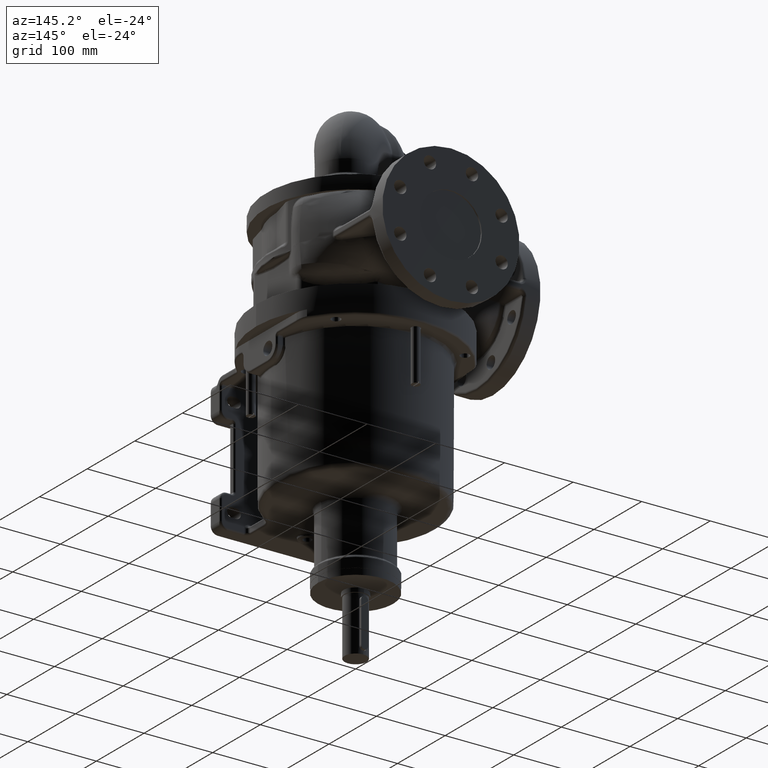
[diagram: clean part render]
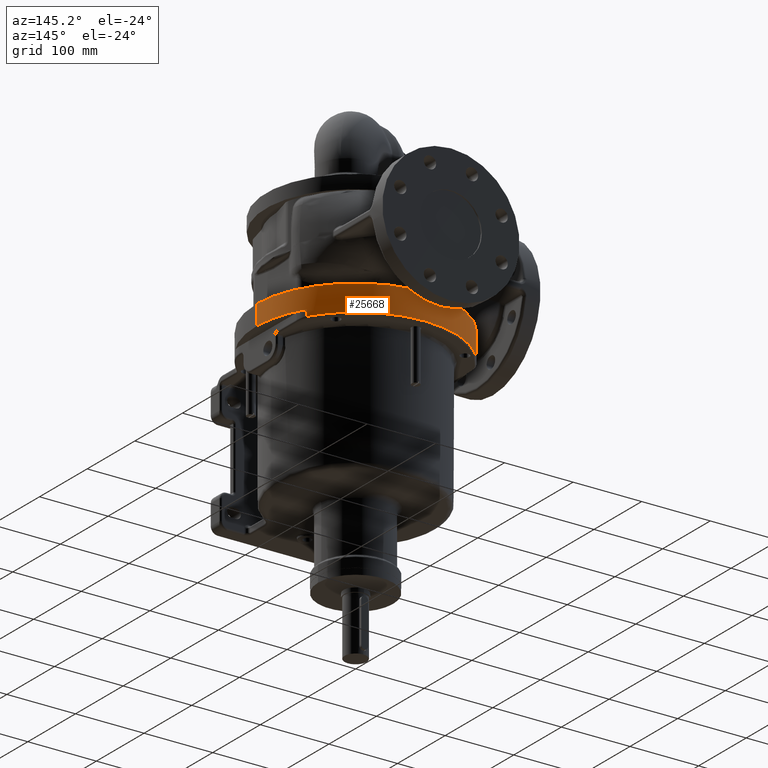
[diagram: same view with one face highlighted and labeled with its STEP entity id]
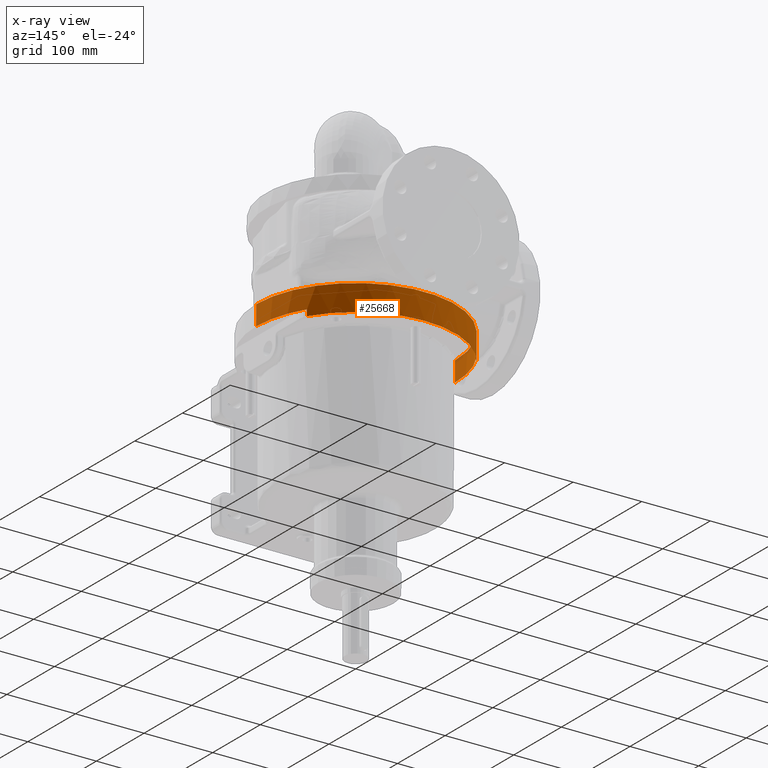
[diagram: x-ray of the same camera — body ghosted, the highlighted face saturated]
A machine part, auxiliary view. The second image highlights one B-rep face of the part: STEP entity #25668.
The next image is the same camera in x-ray: the body ghosted, the highlighted face saturated — about 1% of this face is hidden behind the body in this view.
In plain terms, the highlighted cylindrical surface (partial cylindrical patch) has radius 145 mm, axis along (0, 0, -1).
Its self-contained STEP definition (entity closure, byte-faithful):
#1367=CARTESIAN_POINT('',(0.E0,-3.721681525757E-14,-3.552713678801E-14));
#1368=DIRECTION('',(0.E0,0.E0,1.E0));
#1369=DIRECTION('',(-8.521739130435E-1,5.232586568115E-1,0.E0));
#1370=AXIS2_PLACEMENT_3D('',#1367,#1368,#1369);
#3260=CARTESIAN_POINT('',(0.E0,-3.721681525757E-14,-3.552713678801E-14));
#3261=DIRECTION('',(0.E0,0.E0,1.E0));
#3262=DIRECTION('',(1.E0,0.E0,0.E0));
#3263=AXIS2_PLACEMENT_3D('',#3260,#3261,#3262);
#3337=DIRECTION('',(-1.242691875329E-10,-2.023878348862E-10,1.E0));
#3338=VECTOR('',#3337,9.E0);
#3339=CARTESIAN_POINT('',(-1.235652173902E2,7.587250523949E1,-9.E0));
#3340=LINE('',#3339,#3338);
#3341=CARTESIAN_POINT('',(0.E0,-3.721681525757E-14,-9.E0));
#3342=DIRECTION('',(0.E0,0.E0,-1.E0));
#3343=DIRECTION('',(-8.521739130435E-1,5.232586568115E-1,0.E0));
#3344=AXIS2_PLACEMENT_3D('',#3341,#3342,#3343);
#3346=DIRECTION('',(-1.243702424997E-10,2.025488912396E-10,-1.E0));
#3347=VECTOR('',#3346,9.E0);
#3348=CARTESIAN_POINT('',(1.235652173913E2,7.587250523767E1,
-1.421085471520E-14));
#3349=LINE('',#3348,#3347);
#3350=DIRECTION('',(0.E0,0.E0,-1.E0));
#3351=VECTOR('',#3350,2.9E1);
#3352=CARTESIAN_POINT('',(1.45E2,-2.362738159921E-14,2.9E1));
#3353=LINE('',#3352,#3351);
#3354=CARTESIAN_POINT('',(0.E0,-3.721681525757E-14,2.9E1));
#3355=DIRECTION('',(0.E0,0.E0,1.E0));
#3356=DIRECTION('',(1.E0,0.E0,0.E0));
#3357=AXIS2_PLACEMENT_3D('',#3354,#3355,#3356);
#3359=DIRECTION('',(0.E0,0.E0,-1.E0));
#3360=VECTOR('',#3359,2.9E1);
#3361=CARTESIAN_POINT('',(-1.45E2,-4.509169340863E-14,2.9E1));
#3362=LINE('',#3361,#3360);
#20331=CARTESIAN_POINT('',(1.235652173913E2,7.587250523767E1,-9.E0));
#20332=VERTEX_POINT('',#20331);
#20335=CARTESIAN_POINT('',(-1.235652173913E2,7.587250523767E1,-9.E0));
#20336=VERTEX_POINT('',#20335);
#20759=CARTESIAN_POINT('',(1.45E2,-2.362738159921E-14,2.9E1));
#20760=CARTESIAN_POINT('',(1.45E2,-2.481120683838E-14,-3.907985046681E-14));
#20761=VERTEX_POINT('',#20759);
#20762=VERTEX_POINT('',#20760);
#20763=CARTESIAN_POINT('',(-1.45E2,-4.509169340863E-14,2.9E1));
#20764=CARTESIAN_POINT('',(-1.45E2,-4.627551864780E-14,-3.907985046681E-14));
#20765=VERTEX_POINT('',#20763);
#20766=VERTEX_POINT('',#20764);
#20777=CARTESIAN_POINT('',(-1.235652173913E2,7.587250523767E1,
-2.292960965608E-13));
#20778=VERTEX_POINT('',#20777);
#20779=CARTESIAN_POINT('',(1.235652173913E2,7.587250523767E1,-1.724526777E-13));
#20780=VERTEX_POINT('',#20779);
#25650=CARTESIAN_POINT('',(0.E0,-3.721681525757E-14,3.535E1));
#25651=DIRECTION('',(0.E0,0.E0,-1.E0));
#25652=DIRECTION('',(1.E0,0.E0,0.E0));
#25653=AXIS2_PLACEMENT_3D('',#25650,#25651,#25652);
#25654=CYLINDRICAL_SURFACE('',#25653,1.45E2);
#25655=ORIENTED_EDGE('',*,*,#23030,.F.);
#25657=ORIENTED_EDGE('',*,*,#25656,.F.);
#25659=ORIENTED_EDGE('',*,*,#25658,.T.);
#25660=ORIENTED_EDGE('',*,*,#25642,.F.);
#25661=ORIENTED_EDGE('',*,*,#25593,.F.);
#25662=ORIENTED_EDGE('',*,*,#22978,.F.);
#25664=ORIENTED_EDGE('',*,*,#25663,.T.);
#25665=ORIENTED_EDGE('',*,*,#22974,.T.);
#25666=EDGE_LOOP('',(#25655,#25657,#25659,#25660,#25661,#25662,#25664,#25665));
#25667=FACE_OUTER_BOUND('',#25666,.F.);
#25668=ADVANCED_FACE('',(#25667),#25654,.T.);
#1371=CIRCLE('',#1370,1.45E2);
#3264=CIRCLE('',#3263,1.45E2);
#3345=CIRCLE('',#3344,1.45E2);
#3358=CIRCLE('',#3357,1.45E2);
#22974=EDGE_CURVE('',#20765,#20766,#3362,.T.);
#22978=EDGE_CURVE('',#20761,#20762,#3353,.T.);
#23030=EDGE_CURVE('',#20778,#20766,#1371,.T.);
#25593=EDGE_CURVE('',#20762,#20780,#3264,.T.);
#25642=EDGE_CURVE('',#20780,#20332,#3349,.T.);
#25656=EDGE_CURVE('',#20336,#20778,#3340,.T.);
#25658=EDGE_CURVE('',#20336,#20332,#3345,.T.);
#25663=EDGE_CURVE('',#20761,#20765,#3358,.T.);